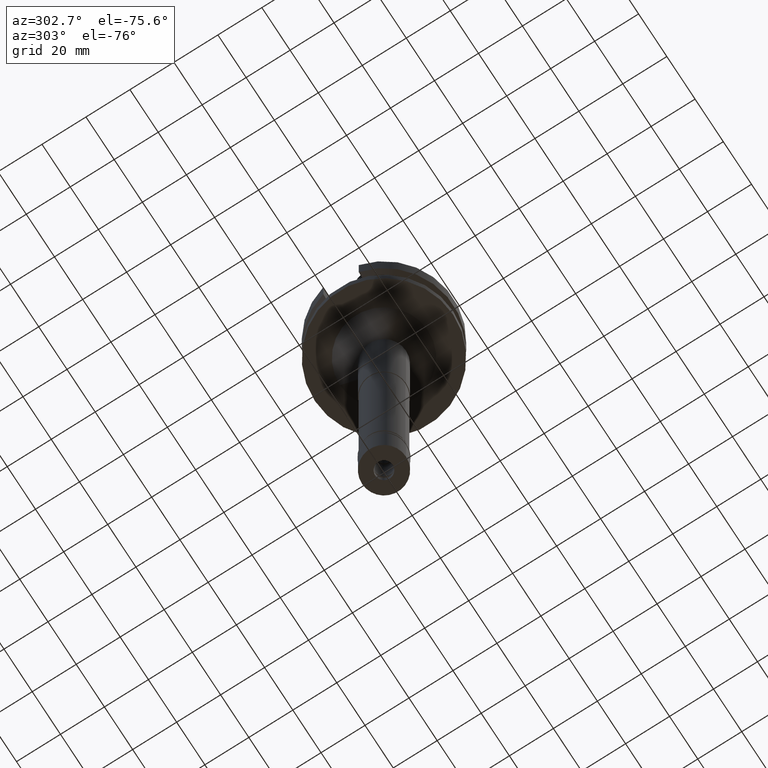
[diagram: clean part render]
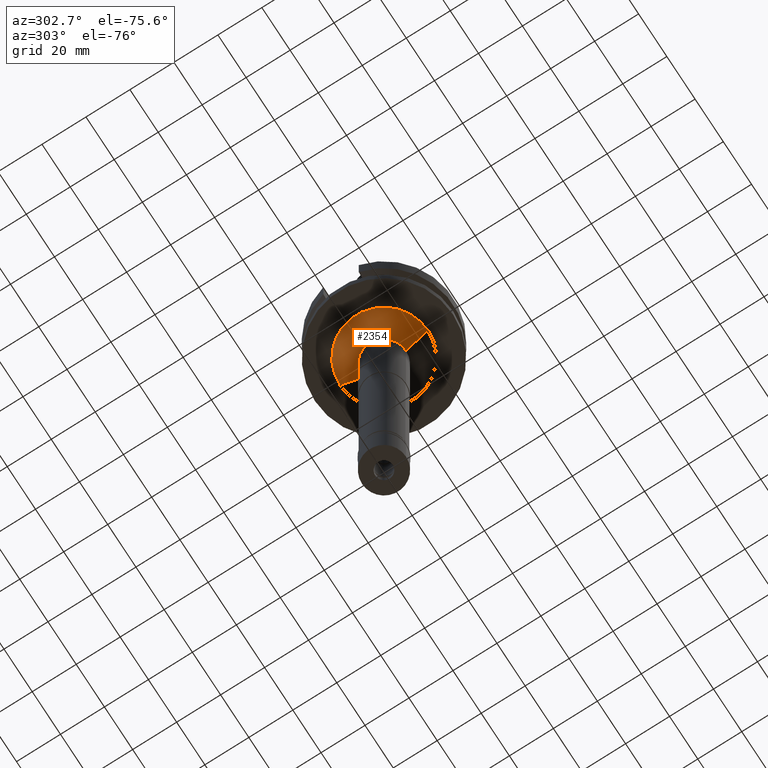
[diagram: same view with one face highlighted and labeled with its STEP entity id]
A machine part, auxiliary view. The second image highlights one B-rep face of the part: STEP entity #2354.
In plain terms, the highlighted conical surface has half-angle 45 deg.
Its self-contained STEP definition (entity closure, byte-faithful):
#103 = DIRECTION ( 'NONE',  ( 0.0000000000000000000, 0.7071067811865474617, -0.7071067811865474617 ) ) ;
#151 = DIRECTION ( 'NONE',  ( 0.0000000000000000000, 0.0000000000000000000, -1.000000000000000000 ) ) ;
#275 = ORIENTED_EDGE ( 'NONE', *, *, #2308, .F. ) ;
#358 = EDGE_CURVE ( 'NONE', #1045, #2499, #1210, .T. ) ;
#615 = VERTEX_POINT ( 'NONE', #3149 ) ;
#831 = LINE ( 'NONE', #2305, #3042 ) ;
#888 = AXIS2_PLACEMENT_3D ( 'NONE', #1434, #151, #1878 ) ;
#1020 = DIRECTION ( 'NONE',  ( 0.0000000000000000000, 0.0000000000000000000, -1.000000000000000000 ) ) ;
#1045 = VERTEX_POINT ( 'NONE', #1935 ) ;
#1118 = CARTESIAN_POINT ( 'NONE',  ( 0.0000000000000000000, 0.0000000000000000000, -32.00000000000000000 ) ) ;
#1207 = EDGE_CURVE ( 'NONE', #615, #3103, #1661, .T. ) ;
#1210 = CIRCLE ( 'NONE', #888, 10.00000000000000000 ) ;
#1234 = ORIENTED_EDGE ( 'NONE', *, *, #358, .F. ) ;
#1348 = LINE ( 'NONE', #2603, #2839 ) ;
#1434 = CARTESIAN_POINT ( 'NONE',  ( 0.0000000000000000000, 0.0000000000000000000, -37.00000000000000000 ) ) ;
#1525 = ORIENTED_EDGE ( 'NONE', *, *, #2097, .T. ) ;
#1544 = CARTESIAN_POINT ( 'NONE',  ( 0.0000000000000000000, 0.0000000000000000000, -27.00000000000000000 ) ) ;
#1627 = DIRECTION ( 'NONE',  ( 0.0000000000000000000, 1.000000000000000000, 0.0000000000000000000 ) ) ;
#1661 = CIRCLE ( 'NONE', #2172, 20.00000000000000000 ) ;
#1878 = DIRECTION ( 'NONE',  ( 0.0000000000000000000, -1.000000000000000000, 0.0000000000000000000 ) ) ;
#1935 = CARTESIAN_POINT ( 'NONE',  ( 0.0000000000000000000, -10.00000000000000000, -37.00000000000000000 ) ) ;
#1960 = EDGE_LOOP ( 'NONE', ( #1234, #275, #2779, #1525 ) ) ;
#1992 = CARTESIAN_POINT ( 'NONE',  ( 0.0000000000000000000, 20.00000000000000000, -27.00000000000000000 ) ) ;
#1993 = DIRECTION ( 'NONE',  ( 0.0000000000000000000, -1.000000000000000000, 0.0000000000000000000 ) ) ;
#2088 = DIRECTION ( 'NONE',  ( 0.0000000000000000000, -0.7071067811865474617, -0.7071067811865474617 ) ) ;
#2097 = EDGE_CURVE ( 'NONE', #3103, #2499, #1348, .T. ) ;
#2104 = FACE_OUTER_BOUND ( 'NONE', #1960, .T. ) ;
#2125 = CONICAL_SURFACE ( 'NONE', #2682, 15.00000000000000000, 0.7853981633972997312 ) ;
#2172 = AXIS2_PLACEMENT_3D ( 'NONE', #1544, #1020, #1993 ) ;
#2305 = CARTESIAN_POINT ( 'NONE',  ( 0.0000000000000000000, -20.00000000000000000, -27.00000000000000000 ) ) ;
#2308 = EDGE_CURVE ( 'NONE', #615, #1045, #831, .T. ) ;
#2354 = ADVANCED_FACE ( 'NONE', ( #2104 ), #2125, .T. ) ;
#2499 = VERTEX_POINT ( 'NONE', #3075 ) ;
#2603 = CARTESIAN_POINT ( 'NONE',  ( 0.0000000000000000000, 20.00000000000000000, -27.00000000000000000 ) ) ;
#2682 = AXIS2_PLACEMENT_3D ( 'NONE', #1118, #2823, #1627 ) ;
#2779 = ORIENTED_EDGE ( 'NONE', *, *, #1207, .T. ) ;
#2823 = DIRECTION ( 'NONE',  ( 0.0000000000000000000, 0.0000000000000000000, 1.000000000000000000 ) ) ;
#2839 = VECTOR ( 'NONE', #2088, 1000.000000000000114 ) ;
#3042 = VECTOR ( 'NONE', #103, 1000.000000000000114 ) ;
#3075 = CARTESIAN_POINT ( 'NONE',  ( 0.0000000000000000000, 10.00000000000000000, -37.00000000000000000 ) ) ;
#3103 = VERTEX_POINT ( 'NONE', #1992 ) ;
#3149 = CARTESIAN_POINT ( 'NONE',  ( 0.0000000000000000000, -20.00000000000000000, -27.00000000000000000 ) ) ;